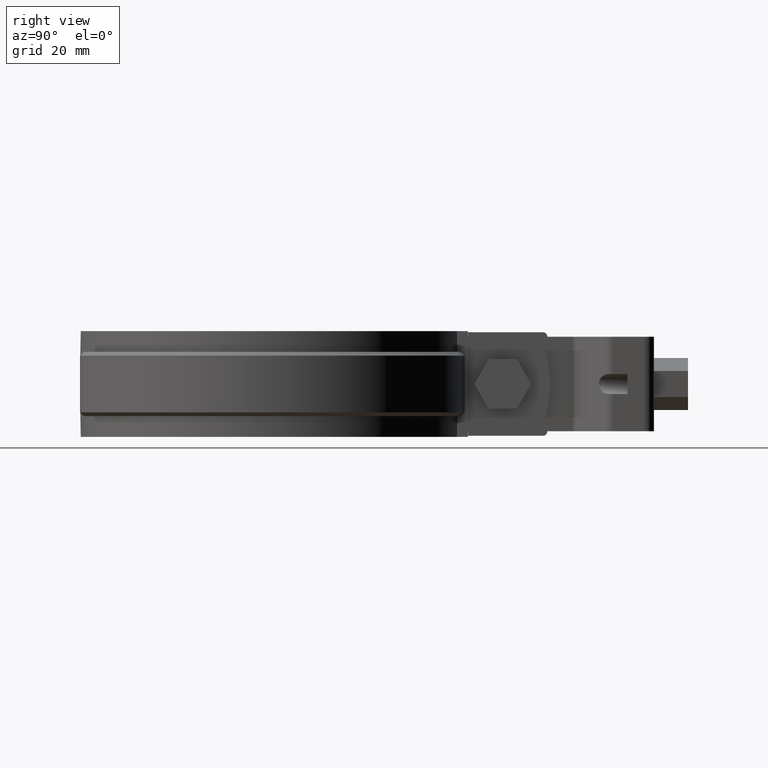
[diagram: clean part render]
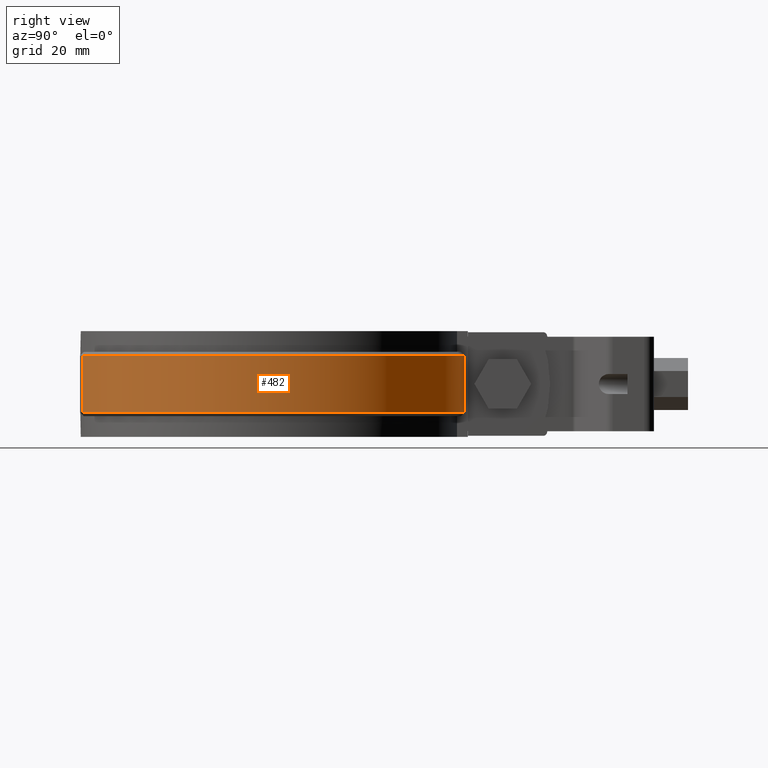
[diagram: same view with one face highlighted and labeled with its STEP entity id]
A machine part, right view. The second image highlights one B-rep face of the part: STEP entity #482.
In plain terms, the highlighted cylindrical surface (partial cylindrical patch) has radius 52.05 mm, axis along (0, 0, 1).
Its self-contained STEP definition (entity closure, byte-faithful):
#482 = ADVANCED_FACE( '', ( #943 ), #944, .T. );
#943 = FACE_OUTER_BOUND( '', #2214, .T. );
#944 = CYLINDRICAL_SURFACE( '', #2215, 52.0500000000000 );
#2214 = EDGE_LOOP( '', ( #4444, #4445, #4446, #4447 ) );
#2215 = AXIS2_PLACEMENT_3D( '', #4448, #4449, #4450 );
#4444 = ORIENTED_EDGE( '', *, *, #6382, .F. );
#4445 = ORIENTED_EDGE( '', *, *, #6523, .T. );
#4446 = ORIENTED_EDGE( '', *, *, #6361, .F. );
#4447 = ORIENTED_EDGE( '', *, *, #6384, .T. );
#4448 = CARTESIAN_POINT( '', ( 0.000000000000000, -1.38777878078145E-014, -8.50000000000000 ) );
#4449 = DIRECTION( '', ( 0.000000000000000, 0.000000000000000, 1.00000000000000 ) );
#4450 = DIRECTION( '', ( 0.0960614793467818, 0.995375402642494, 0.000000000000000 ) );
#6361 = EDGE_CURVE( '', #7396, #7397, #7398, .T. );
#6382 = EDGE_CURVE( '', #7434, #7436, #7437, .T. );
#6384 = EDGE_CURVE( '', #7396, #7436, #7439, .T. );
#6523 = EDGE_CURVE( '', #7434, #7397, #7660, .T. );
#7396 = VERTEX_POINT( '', #10435 );
#7397 = VERTEX_POINT( '', #10436 );
#7398 = LINE( '', #10437, #10438 );
#7434 = VERTEX_POINT( '', #10489 );
#7436 = VERTEX_POINT( '', #10494 );
#7437 = LINE( '', #10495, #10496 );
#7439 = CIRCLE( '', #10501, 52.0500000000000 );
#7660 = CIRCLE( '', #11054, 52.0500000000000 );
#10435 = CARTESIAN_POINT( '', ( 16.8700026854753, -49.2402834008097, -7.50000000000001 ) );
#10436 = CARTESIAN_POINT( '', ( 16.8700026854753, -49.2402834008097, 7.50000000000000 ) );
#10437 = CARTESIAN_POINT( '', ( 16.8700026854753, -49.2402834008097, -8.50000000000000 ) );
#10438 = VECTOR( '', #12719, 1000.00000000000 );
#10489 = CARTESIAN_POINT( '', ( 6.00000000000000, 51.7030221553827, 7.50000000000000 ) );
#10494 = CARTESIAN_POINT( '', ( 6.00000000000000, 51.7030221553827, -7.50000000000001 ) );
#10495 = CARTESIAN_POINT( '', ( 6.00000000000000, 51.7030221553827, -8.50000000000000 ) );
#10496 = VECTOR( '', #12747, 1000.00000000000 );
#10501 = AXIS2_PLACEMENT_3D( '', #12748, #12749, #12750 );
#11054 = AXIS2_PLACEMENT_3D( '', #12926, #12927, #12928 );
#12719 = DIRECTION( '', ( 0.000000000000000, 0.000000000000000, 1.00000000000000 ) );
#12747 = DIRECTION( '', ( 0.000000000000000, 0.000000000000000, -1.00000000000000 ) );
#12748 = CARTESIAN_POINT( '', ( 0.000000000000000, -1.38777878078145E-014, -7.50000000000001 ) );
#12749 = DIRECTION( '', ( 0.000000000000000, 0.000000000000000, 1.00000000000000 ) );
#12750 = DIRECTION( '', ( 1.00000000000000, 0.000000000000000, 0.000000000000000 ) );
#12926 = CARTESIAN_POINT( '', ( 0.000000000000000, -1.38777878078145E-014, 7.50000000000000 ) );
#12927 = DIRECTION( '', ( 0.000000000000000, 0.000000000000000, -1.00000000000000 ) );
#12928 = DIRECTION( '', ( -1.00000000000000, 0.000000000000000, 0.000000000000000 ) );